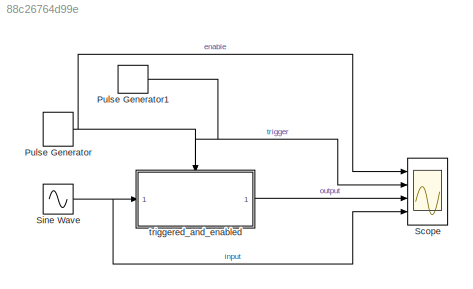
MODEL slx_88c26764d99e
KIND model
CONFIG AbsTol = auto
CONFIG EnableMultiTasking = on
CONFIG FixedStep = auto
CONFIG MaxStep = auto
CONFIG MinStep = auto
CONFIG RelTol = 1e-3
CONFIG SampleTimeConstraint = Unconstrained
CONFIG Solver = ode45
CONFIG SolverName = ode45
CONFIG StartTime = 0.0
CONFIG StopTime = 6
BLOCK [DiscretePulseGenerator] Pulse Generator
  AttributesFormatString = Period: %<Period>
  Period = 0.6
  Ports = [0, 1]
  PulseType = Time based
  PulseWidth = 50
BLOCK [DiscretePulseGenerator] Pulse Generator1
  AttributesFormatString = Period: %<Period>
  Period = 0.25
  Ports = [0, 1]
  PulseType = Time based
  PulseWidth = 50
BLOCK [Scope] Scope
  Floating = off
  NumInputPorts = 4
  Ports = [4]
  ScopeSpecificationString = Simulink.scopes.TimeScopeBlockCfg('CurrentConfiguration', extmgr.ConfigurationSet(extmgr.Configuration('Core','General UI',true),extmgr.Configuration('Core','Source UI',true),extmgr.Configuration('Sources','WiredSimulink',true,'DataLoggingSaveFormat','StructureWithTime','DataLoggingLimitDataPoints',true,'DataLoggingDecimation','1','DataLoggingDecimateData',true),extmgr.Configuration('Visuals','Tim...<+3640ch>
BLOCK [Sin] Sine Wave
  Ports = [0, 1]
  SampleTime = 0
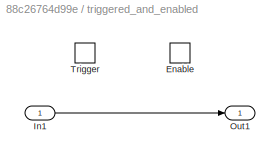
BLOCK [SubSystem] triggered_and_enabled
  Ports = [1, 1, 1, 1]
  RequestExecContextInheritance = off
  TreatAsAtomicUnit = on
BLOCK [EnablePort] triggered_and_enabled/Enable
  Ports = []
  StatesWhenEnabling = reset
BLOCK [Inport] triggered_and_enabled/In1
  IconDisplay = Port number
BLOCK [Outport] triggered_and_enabled/Out1
  IconDisplay = Port number
  InitialOutput = [0]
  OutputWhenDisabled = reset
BLOCK [TriggerPort] triggered_and_enabled/Trigger
  Ports = []
  VariantControl = Variant
NET Pulse Generator1:1 -> Scope:2, triggered_and_enabled:trigger
NET Pulse Generator:1 -> Scope:1, triggered_and_enabled:enable
NET Sine Wave:1 -> Scope:4, triggered_and_enabled:1
LINE triggered_and_enabled/In1:1 -> triggered_and_enabled/Out1:1
LINE triggered_and_enabled:1 -> Scope:3
note: NET lines group one-source signal fan-out (src -> all destinations, sorted); 1:1 wires keep LINE
